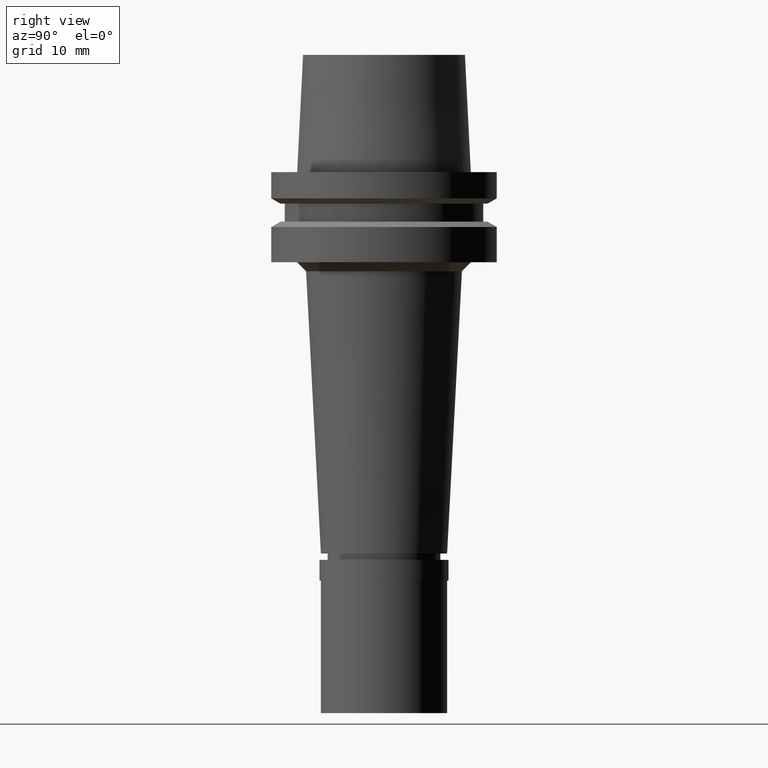
[diagram: clean part render]
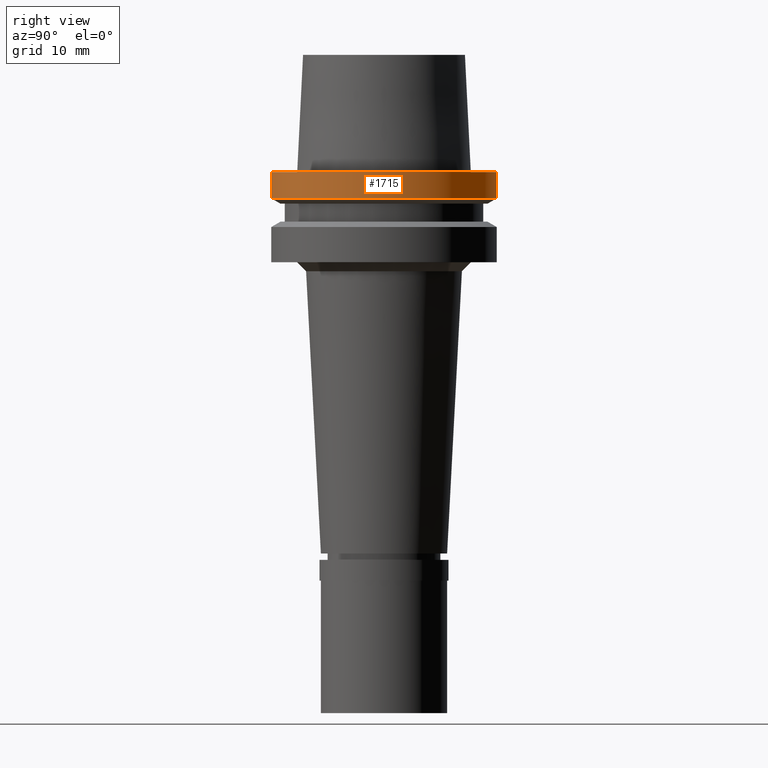
[diagram: same view with one face highlighted and labeled with its STEP entity id]
A machine part, right view. The second image highlights one B-rep face of the part: STEP entity #1715.
In plain terms, the highlighted cylindrical surface (partial cylindrical patch) has radius 12.5 mm, axis along (0, 0, 1).
Its self-contained STEP definition (entity closure, byte-faithful):
#10 = VECTOR ( 'NONE', #2128, 1000.000000000000000 ) ;
#61 = FACE_OUTER_BOUND ( 'NONE', #1388, .T. ) ;
#87 = VERTEX_POINT ( 'NONE', #1754 ) ;
#191 = ORIENTED_EDGE ( 'NONE', *, *, #232, .T. ) ;
#232 = EDGE_CURVE ( 'NONE', #2266, #87, #2103, .T. ) ;
#351 = CARTESIAN_POINT ( 'NONE',  ( 0.0000000000000000000, 0.0000000000000000000, -5.684341886080998387E-14 ) ) ;
#372 = VECTOR ( 'NONE', #904, 1000.000000000000000 ) ;
#409 = EDGE_CURVE ( 'NONE', #87, #1651, #1044, .T. ) ;
#442 = CARTESIAN_POINT ( 'NONE',  ( 0.0000000000000000000, -12.50000000000000000, -1.894780628694000185E-14 ) ) ;
#794 = VERTEX_POINT ( 'NONE', #2617 ) ;
#802 = DIRECTION ( 'NONE',  ( 0.0000000000000000000, 0.0000000000000000000, -1.000000000000000000 ) ) ;
#904 = DIRECTION ( 'NONE',  ( 0.0000000000000000000, -2.452009394519999757E-13, -1.000000000000000000 ) ) ;
#909 = DIRECTION ( 'NONE',  ( 0.0000000000000000000, 1.000000000000000000, 0.0000000000000000000 ) ) ;
#920 = AXIS2_PLACEMENT_3D ( 'NONE', #351, #802, #960 ) ;
#960 = DIRECTION ( 'NONE',  ( 0.0000000000000000000, 1.000000000000000000, 0.0000000000000000000 ) ) ;
#1044 = LINE ( 'NONE', #442, #10 ) ;
#1345 = ORIENTED_EDGE ( 'NONE', *, *, #409, .T. ) ;
#1388 = EDGE_LOOP ( 'NONE', ( #191, #1345, #1745, #2210 ) ) ;
#1527 = DIRECTION ( 'NONE',  ( 0.0000000000000000000, 0.0000000000000000000, 1.000000000000000000 ) ) ;
#1651 = VERTEX_POINT ( 'NONE', #2116 ) ;
#1671 = CIRCLE ( 'NONE', #2038, 12.50000000000000000 ) ;
#1706 = CARTESIAN_POINT ( 'NONE',  ( 0.0000000000000000000, 12.50000000000000000, -5.684341886080998387E-14 ) ) ;
#1715 = ADVANCED_FACE ( 'NONE', ( #61 ), #2564, .T. ) ;
#1745 = ORIENTED_EDGE ( 'NONE', *, *, #2063, .T. ) ;
#1754 = CARTESIAN_POINT ( 'NONE',  ( 0.0000000000000000000, -12.50000000000000000, -5.684341886080998387E-14 ) ) ;
#1887 = DIRECTION ( 'NONE',  ( 0.0000000000000000000, -1.000000000000000000, 0.0000000000000000000 ) ) ;
#1966 = CARTESIAN_POINT ( 'NONE',  ( 0.0000000000000000000, 0.0000000000000000000, -59.45000000000000284 ) ) ;
#2038 = AXIS2_PLACEMENT_3D ( 'NONE', #2273, #2095, #1887 ) ;
#2063 = EDGE_CURVE ( 'NONE', #1651, #794, #1671, .T. ) ;
#2095 = DIRECTION ( 'NONE',  ( 0.0000000000000000000, 0.0000000000000000000, 1.000000000000000000 ) ) ;
#2103 = CIRCLE ( 'NONE', #920, 12.50000000000000000 ) ;
#2116 = CARTESIAN_POINT ( 'NONE',  ( 0.0000000000000000000, -12.50000000000000000, -2.912286759727999996 ) ) ;
#2128 = DIRECTION ( 'NONE',  ( 0.0000000000000000000, 2.452009394519999757E-13, -1.000000000000000000 ) ) ;
#2142 = CARTESIAN_POINT ( 'NONE',  ( 0.0000000000000000000, 12.50000000000000000, -1.894780628694000185E-14 ) ) ;
#2210 = ORIENTED_EDGE ( 'NONE', *, *, #2342, .F. ) ;
#2266 = VERTEX_POINT ( 'NONE', #1706 ) ;
#2273 = CARTESIAN_POINT ( 'NONE',  ( 0.0000000000000000000, 0.0000000000000000000, -2.912286759726999907 ) ) ;
#2342 = EDGE_CURVE ( 'NONE', #2266, #794, #2344, .T. ) ;
#2344 = LINE ( 'NONE', #2142, #372 ) ;
#2564 = CYLINDRICAL_SURFACE ( 'NONE', #2682, 12.50000000000000000 ) ;
#2617 = CARTESIAN_POINT ( 'NONE',  ( 0.0000000000000000000, 12.50000000000000000, -2.912286759727999996 ) ) ;
#2682 = AXIS2_PLACEMENT_3D ( 'NONE', #1966, #1527, #909 ) ;